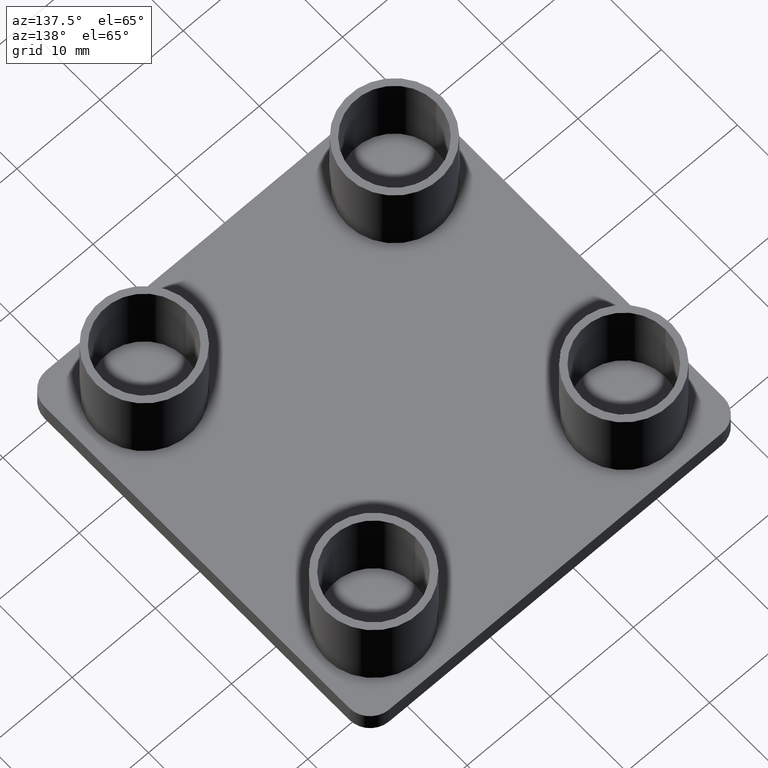
[diagram: clean part render]
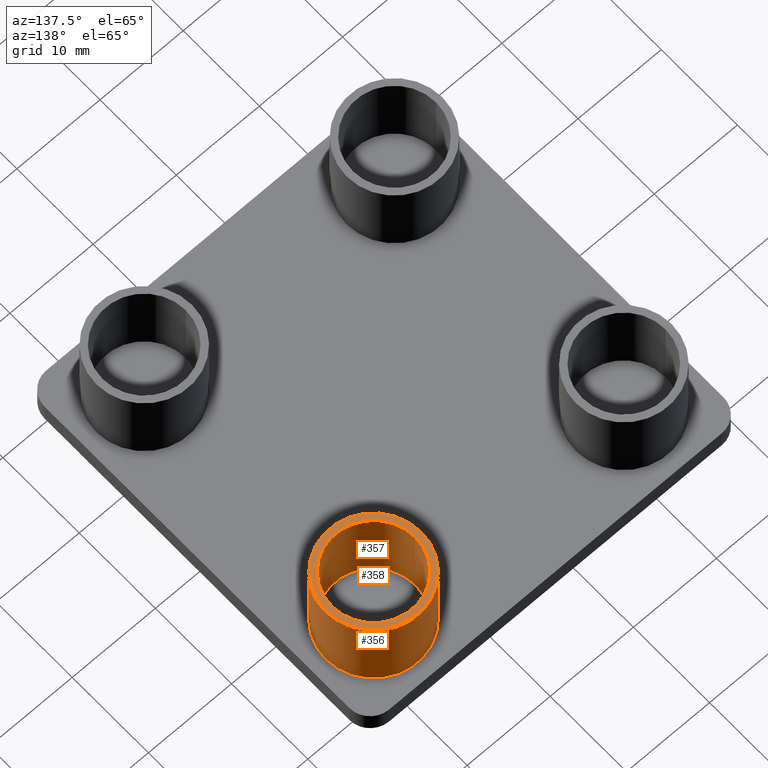
[diagram: same view with one multi-face feature highlighted, each face labeled with its STEP entity id]
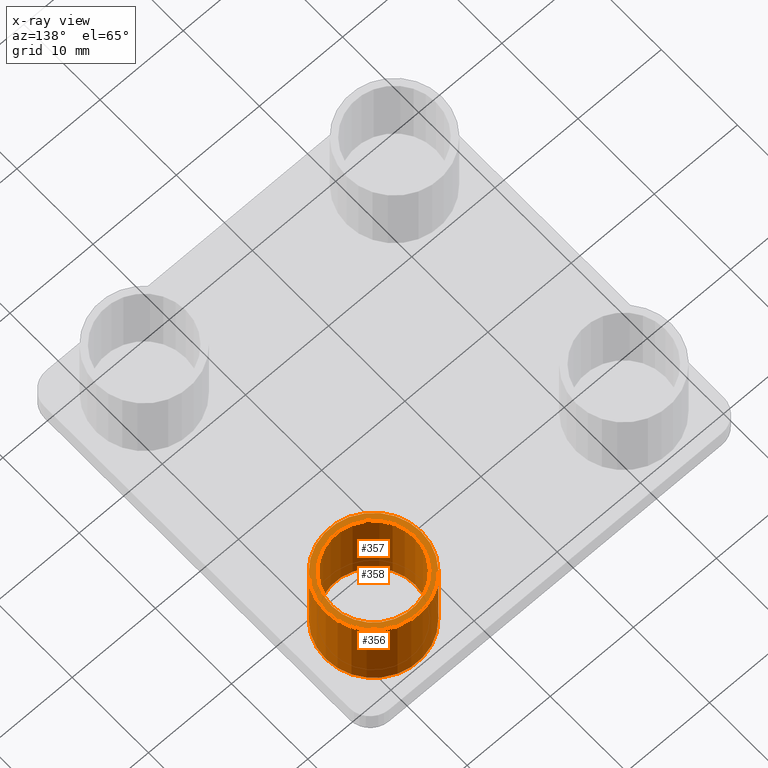
[diagram: x-ray of the same camera — body ghosted, the whole feature saturated]
A machine part, auxiliary view. The highlighted faces form ONE feature: a stepped (counterbored) hole: 2 coaxial cylindrical walls of radii 5 -> 5.75 mm joined by 1 annular planar shoulder face(s). The faces share edges in the B-rep.
The next image is the same camera in x-ray: the body ghosted and the whole hole feature saturated, so the bore chain is visible through the body.
Their STEP definitions:
[1] entity #356 (Cylinder):
#28=FACE_BOUND('',#108,.T.);
#68=FACE_OUTER_BOUND('',#107,.T.);
#107=EDGE_LOOP('',(#315));
#108=EDGE_LOOP('',(#316));
#124=CIRCLE('',#381,5.749999999977);
#135=CIRCLE('',#407,5.749999999977);
#188=VERTEX_POINT('',#585);
#199=VERTEX_POINT('',#622);
#228=EDGE_CURVE('',#188,#188,#124,.T.);
#239=EDGE_CURVE('',#199,#199,#135,.T.);
#315=ORIENTED_EDGE('',*,*,#228,.T.);
#316=ORIENTED_EDGE('',*,*,#239,.F.);
#331=CYLINDRICAL_SURFACE('',#406,5.749999999977);
#356=ADVANCED_FACE('',(#68,#28),#331,.T.);
#381=AXIS2_PLACEMENT_3D('',#586,#469,#470);
#406=AXIS2_PLACEMENT_3D('',#621,#519,#520);
#407=AXIS2_PLACEMENT_3D('',#623,#521,#522);
#469=DIRECTION('center_axis',(0.,0.,1.));
#470=DIRECTION('ref_axis',(1.,0.,0.));
#519=DIRECTION('center_axis',(0.,0.,1.));
#520=DIRECTION('ref_axis',(1.,0.,0.));
#521=DIRECTION('center_axis',(0.,0.,1.));
#522=DIRECTION('ref_axis',(1.,0.,0.));
#585=CARTESIAN_POINT('',(31.7999554998726,15.0499774999398,0.));
#586=CARTESIAN_POINT('Origin',(37.5499554998496,15.0499774999398,0.));
#621=CARTESIAN_POINT('Origin',(37.5499554998496,15.0499774999398,0.));
#622=CARTESIAN_POINT('',(31.7999554998726,15.0499774999398,10.));
#623=CARTESIAN_POINT('Origin',(37.5499554998496,15.0499774999398,10.));
[2] entity #357 (Cylinder):
#29=FACE_BOUND('',#110,.T.);
#69=FACE_OUTER_BOUND('',#109,.T.);
#109=EDGE_LOOP('',(#317));
#110=EDGE_LOOP('',(#318));
#127=CIRCLE('',#387,4.99999999998);
#136=CIRCLE('',#409,4.99999999998);
#191=VERTEX_POINT('',#594);
#200=VERTEX_POINT('',#625);
#231=EDGE_CURVE('',#191,#191,#127,.T.);
#240=EDGE_CURVE('',#200,#200,#136,.T.);
#317=ORIENTED_EDGE('',*,*,#231,.T.);
#318=ORIENTED_EDGE('',*,*,#240,.F.);
#332=CYLINDRICAL_SURFACE('',#408,4.99999999998);
#357=ADVANCED_FACE('',(#69,#29),#332,.F.);
#387=AXIS2_PLACEMENT_3D('',#595,#481,#482);
#408=AXIS2_PLACEMENT_3D('',#624,#523,#524);
#409=AXIS2_PLACEMENT_3D('',#626,#525,#526);
#481=DIRECTION('center_axis',(0.,0.,-1.));
#482=DIRECTION('ref_axis',(1.,0.,0.));
#523=DIRECTION('center_axis',(0.,0.,-1.));
#524=DIRECTION('ref_axis',(1.,0.,0.));
#525=DIRECTION('center_axis',(0.,0.,-1.));
#526=DIRECTION('ref_axis',(1.,0.,0.));
#594=CARTESIAN_POINT('',(32.5499554998696,15.0499774999398,0.));
#595=CARTESIAN_POINT('Origin',(37.5499554998496,15.0499774999398,0.));
#624=CARTESIAN_POINT('Origin',(37.5499554998496,15.0499774999398,0.));
#625=CARTESIAN_POINT('',(32.5499554998696,15.0499774999398,10.));
#626=CARTESIAN_POINT('Origin',(37.5499554998496,15.0499774999398,10.));
[3] entity #358 (Plane):
#30=FACE_BOUND('',#112,.T.);
#44=PLANE('',#410);
#70=FACE_OUTER_BOUND('',#111,.T.);
#111=EDGE_LOOP('',(#319));
#112=EDGE_LOOP('',(#320));
#135=CIRCLE('',#407,5.749999999977);
#136=CIRCLE('',#409,4.99999999998);
#199=VERTEX_POINT('',#622);
#200=VERTEX_POINT('',#625);
#239=EDGE_CURVE('',#199,#199,#135,.T.);
#240=EDGE_CURVE('',#200,#200,#136,.T.);
#319=ORIENTED_EDGE('',*,*,#239,.T.);
#320=ORIENTED_EDGE('',*,*,#240,.T.);
#358=ADVANCED_FACE('',(#70,#30),#44,.T.);
#407=AXIS2_PLACEMENT_3D('',#623,#521,#522);
#409=AXIS2_PLACEMENT_3D('',#626,#525,#526);
#410=AXIS2_PLACEMENT_3D('',#627,#527,#528);
#521=DIRECTION('center_axis',(0.,0.,1.));
#522=DIRECTION('ref_axis',(1.,0.,0.));
#525=DIRECTION('center_axis',(0.,0.,-1.));
#526=DIRECTION('ref_axis',(1.,0.,0.));
#527=DIRECTION('center_axis',(0.,0.,1.));
#528=DIRECTION('ref_axis',(1.,0.,0.));
#622=CARTESIAN_POINT('',(31.7999554998726,15.0499774999398,10.));
#623=CARTESIAN_POINT('Origin',(37.5499554998496,15.0499774999398,10.));
#625=CARTESIAN_POINT('',(32.5499554998696,15.0499774999398,10.));
#626=CARTESIAN_POINT('Origin',(37.5499554998496,15.0499774999398,10.));
#627=CARTESIAN_POINT('Origin',(30.6499507659301,8.14997276604845,10.));